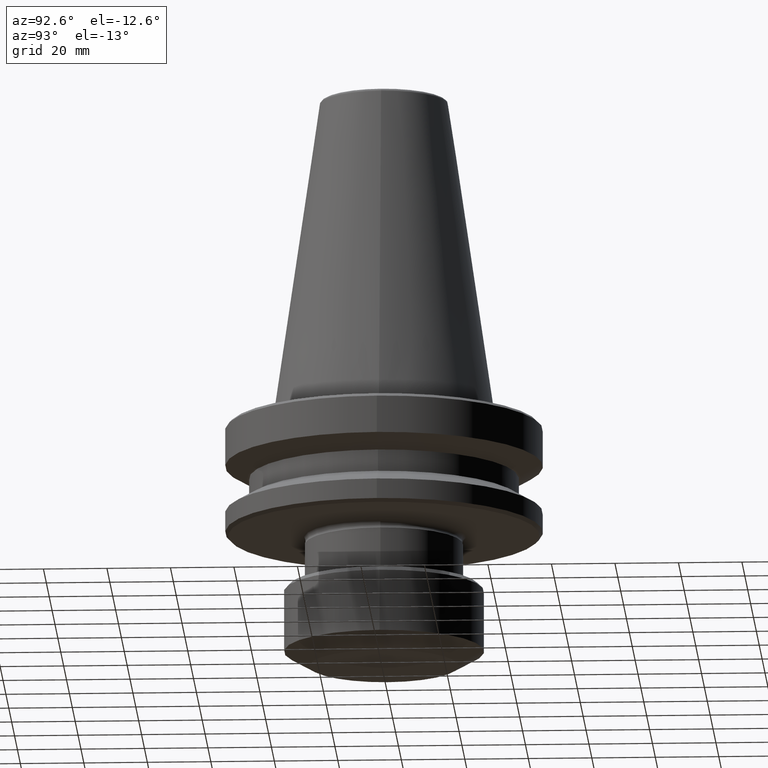
[diagram: clean part render]
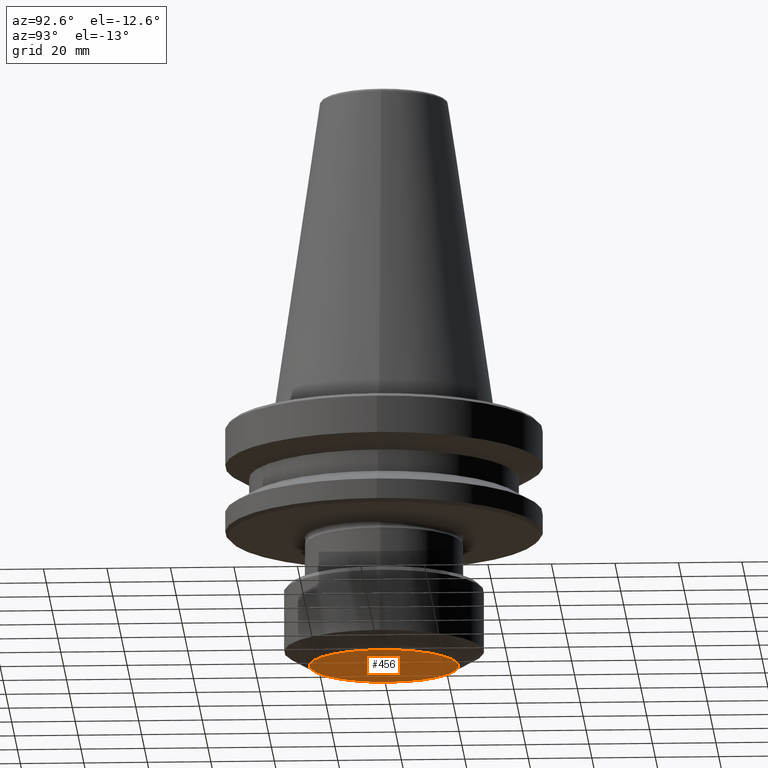
[diagram: same view with one face highlighted and labeled with its STEP entity id]
A machine part, auxiliary view. The second image highlights one B-rep face of the part: STEP entity #456.
In plain terms, the highlighted planar face has unit normal (0, -0, 1).
Its self-contained STEP definition (entity closure, byte-faithful):
#35 = AXIS2_PLACEMENT_3D ( 'NONE', #260, #897, #354 ) ;
#41 = ORIENTED_EDGE ( 'NONE', *, *, #513, .F. ) ;
#64 = CARTESIAN_POINT ( 'NONE',  ( 23.50000000003590000, 0.0000000000000000000, -79.99644838004846300 ) ) ;
#81 = PLANE ( 'NONE',  #845 ) ;
#107 = CIRCLE ( 'NONE', #35, 23.50000000003590000 ) ;
#169 = CARTESIAN_POINT ( 'NONE',  ( 0.0000000000000000000, 0.0000000000000000000, -79.99644838004846300 ) ) ;
#212 = CARTESIAN_POINT ( 'NONE',  ( -23.50000000003590000, 3.367778697661820500E-015, -79.99644838004846300 ) ) ;
#240 = CIRCLE ( 'NONE', #858, 23.50000000003590000 ) ;
#260 = CARTESIAN_POINT ( 'NONE',  ( 0.0000000000000000000, 0.0000000000000000000, -79.99644838004846300 ) ) ;
#291 = VERTEX_POINT ( 'NONE', #212 ) ;
#293 = DIRECTION ( 'NONE',  ( 1.000000000000000000, 0.0000000000000000000, 0.0000000000000000000 ) ) ;
#295 = DIRECTION ( 'NONE',  ( 1.000000000000000000, 0.0000000000000000000, 0.0000000000000000000 ) ) ;
#325 = VERTEX_POINT ( 'NONE', #64 ) ;
#354 = DIRECTION ( 'NONE',  ( 1.000000000000000000, 0.0000000000000000000, 0.0000000000000000000 ) ) ;
#355 = DIRECTION ( 'NONE',  ( 0.0000000000000000000, -0.0000000000000000000, 1.000000000000000000 ) ) ;
#456 = ADVANCED_FACE ( 'NONE', ( #830 ), #81, .F. ) ;
#513 = EDGE_CURVE ( 'NONE', #325, #291, #240, .T. ) ;
#602 = ORIENTED_EDGE ( 'NONE', *, *, #961, .F. ) ;
#739 = EDGE_LOOP ( 'NONE', ( #41, #602 ) ) ;
#830 = FACE_OUTER_BOUND ( 'NONE', #739, .T. ) ;
#845 = AXIS2_PLACEMENT_3D ( 'NONE', #169, #355, #293 ) ;
#858 = AXIS2_PLACEMENT_3D ( 'NONE', #881, #1168, #295 ) ;
#881 = CARTESIAN_POINT ( 'NONE',  ( 0.0000000000000000000, 0.0000000000000000000, -79.99644838004846300 ) ) ;
#897 = DIRECTION ( 'NONE',  ( -0.0000000000000000000, -0.0000000000000000000, 1.000000000000000000 ) ) ;
#961 = EDGE_CURVE ( 'NONE', #291, #325, #107, .T. ) ;
#1168 = DIRECTION ( 'NONE',  ( -0.0000000000000000000, -0.0000000000000000000, 1.000000000000000000 ) ) ;